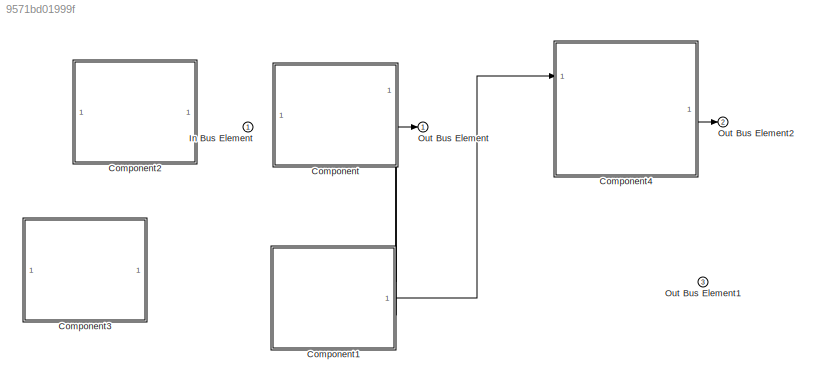
MODEL slx_9571bd01999f
KIND model
CONFIG AbsTol = auto
CONFIG EnableMultiTasking = off
CONFIG FixedStep = auto
CONFIG MaxStep = auto
CONFIG MinStep = auto
CONFIG RelTol = 1e-3
CONFIG SampleTimeConstraint = Unconstrained
CONFIG SolverName = VariableStepAuto
CONFIG StartTime = 0.0
CONFIG StopTime = 10.0
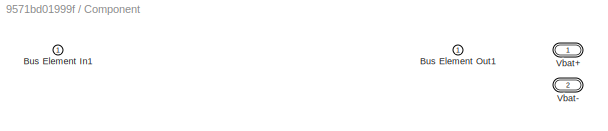
BLOCK [SubSystem] Component
  PortSchema = {"entries":[{"content":{"headerSize":26,"margin":15,"minimumSpacing":25,"sides":[{"content":{"connectorIds":["In1"]},"type":"ConnectorPlacement.EquallySpacedRectSide","uuid":"64d386da-6e18-404c-9f4a-8bd7fd4d6e59"},{"content":{"connectorIds":["Out1"],"side":"RIGHT"},"type":"ConnectorPlacement.EquallySpacedRectSide","uuid":"ce86963e-e107-4891-b242-c7ee764e888d"},{"content":{"connectorIds":[],"side":...<+449ch>
  Ports = [1, 1, 0, 0, 0, 0, 2]
  RequestExecContextInheritance = off
BLOCK [Inport] Component/Bus Element In1
BLOCK [Outport] Component/Bus Element Out1
BLOCK [PMIOPort] Component/Vbat+
  Side = Right
BLOCK [PMIOPort] Component/Vbat-
  Port = 2
  Side = Right
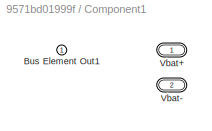
BLOCK [SubSystem] Component1
  PortSchema = {"entries":[{"content":{"headerSize":26,"margin":15,"minimumSpacing":25,"sides":[{"content":{"connectorIds":[]},"type":"ConnectorPlacement.EquallySpacedRectSide","uuid":"64d386da-6e18-404c-9f4a-8bd7fd4d6e59"},{"content":{"connectorIds":["Out1"],"side":"RIGHT"},"type":"ConnectorPlacement.EquallySpacedRectSide","uuid":"ce86963e-e107-4891-b242-c7ee764e888d"},{"content":{"connectorIds":["LConn1","LCon...<+300ch>
  Ports = [0, 1, 0, 0, 0, 2]
  RequestExecContextInheritance = off
BLOCK [Outport] Component1/Bus Element Out1
BLOCK [PMIOPort] Component1/Vbat+
  Side = Left
BLOCK [PMIOPort] Component1/Vbat-
  Port = 2
  Side = Left
BLOCK [ModelReference] Component2
  ModelNameDialog = simulinkBehaviour.slx
  ModelReferenceVersion = 1.4
  PortSchema = {"entries":[{"content":{"headerSize":38,"margin":15,"minimumSpacing":25,"sides":[{"content":{"connectorIds":["In1"]},"type":"ConnectorPlacement.EquallySpacedRectSide","uuid":"d66ce1f8-60ba-49a4-80d6-d05d862fa0bc"},{"content":{"connectorIds":["Out1"],"side":"RIGHT"},"type":"ConnectorPlacement.EquallySpacedRectSide","uuid":"4093e83d-5331-46f6-82a3-137b5a3cf089"},{"content":{"connectorIds":[],"side":...<+288ch>
  Ports = [1, 1]
BLOCK [SubSystem] Component3
  PortSchema = {"entries":[{"content":{"headerSize":26,"margin":15,"minimumSpacing":25,"sides":[{"content":{"connectorIds":[]},"type":"ConnectorPlacement.EquallySpacedRectSide","uuid":"64d386da-6e18-404c-9f4a-8bd7fd4d6e59"},{"content":{"connectorIds":[],"side":"RIGHT"},"type":"ConnectorPlacement.EquallySpacedRectSide","uuid":"ce86963e-e107-4891-b242-c7ee764e888d"},{"content":{"connectorIds":[],"side":"TOP"},"typ...<+277ch>
  Ports = []
  RequestExecContextInheritance = off
BLOCK [SubSystem] Component4
  PortSchema = {"entries":[{"content":{"headerSize":26,"margin":15,"minimumSpacing":25,"sides":[{"content":{"connectorIds":["In1","LConn1","LConn2"]},"type":"ConnectorPlacement.EquallySpacedRectSide","uuid":"64d386da-6e18-404c-9f4a-8bd7fd4d6e59"},{"content":{"connectorIds":["Out1"],"side":"RIGHT"},"type":"ConnectorPlacement.EquallySpacedRectSide","uuid":"ce86963e-e107-4891-b242-c7ee764e888d"},{"content":{"connec...<+306ch>
  Ports = [1, 1, 0, 0, 0, 2]
  ReferencedSubsystem = Component4
  RequestExecContextInheritance = off
BLOCK [Inport] In Bus Element
BLOCK [Outport] Out Bus Element
BLOCK [Outport] Out Bus Element1
  Port = 3
BLOCK [Outport] Out Bus Element2
  Port = 2
LINE Component1:1 -> Component4:1
LINE Component4:1 -> Out Bus Element2:1
LINE Component:1 -> Out Bus Element:1
PLINE Component1:LConn1 -- Component:RConn1
PLINE Component1:LConn2 -- Component:RConn2
